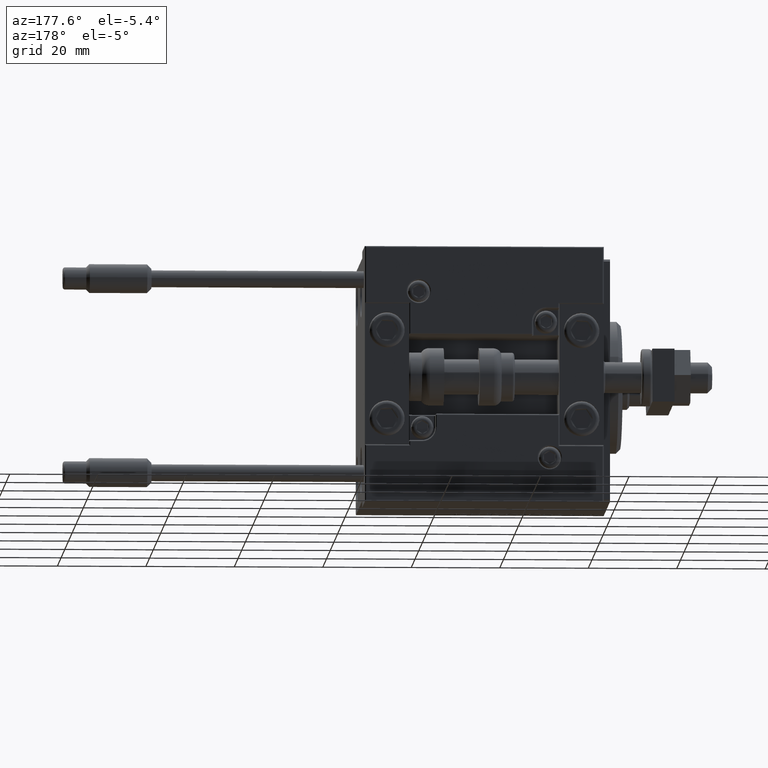
[diagram: clean part render]
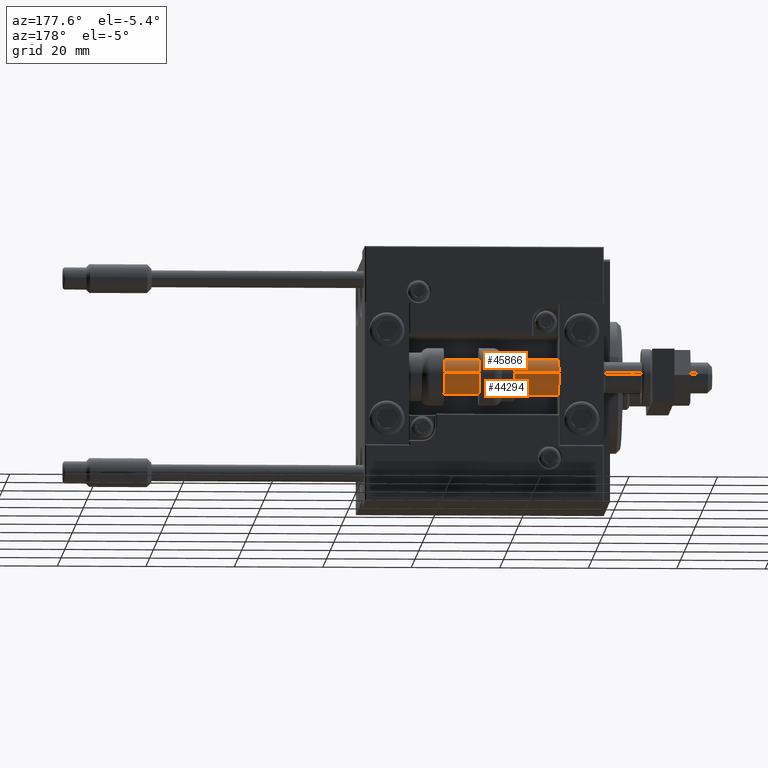
[diagram: same view with one multi-face feature highlighted, each face labeled with its STEP entity id]
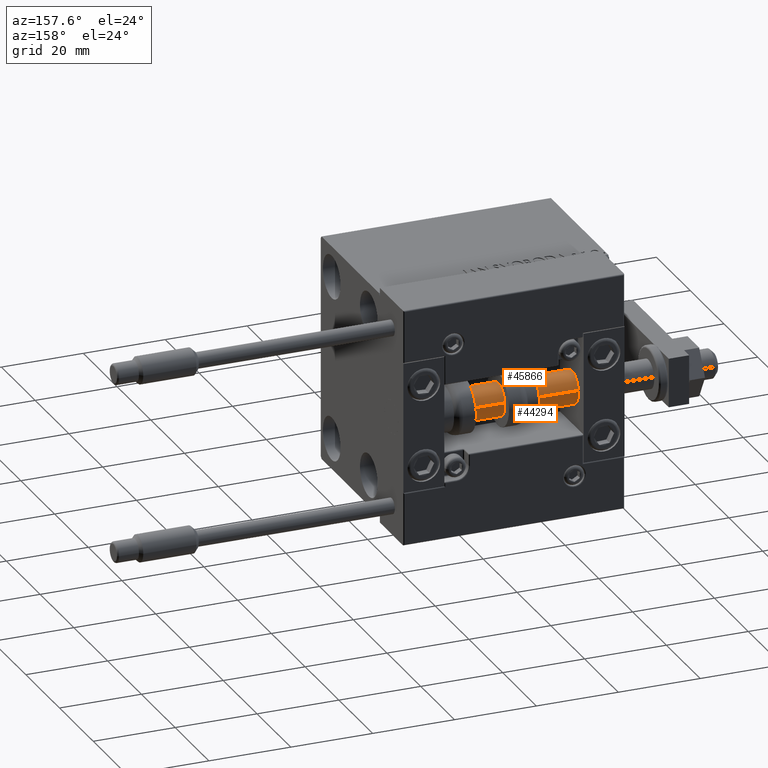
[diagram: same view with one multi-face feature highlighted, each face labeled with its STEP entity id]
A machine part, auxiliary view. The highlighted faces form ONE feature: a constant-radius fillet chain: 2 tangent blend faces with common blend radius 4 mm. The faces share edges in the B-rep.
A second angle (auxiliary view) of the same feature is appended — it is thin or edge-on in the first view.
Their STEP definitions:
[1] entity #45866 (Cylinder):
#2960 = CIRCLE ( 'NONE', #45317, 4.000000000000000000 ) ;
#3096 = EDGE_CURVE ( 'NONE', #43007, #42677, #2960, .T. ) ;
#4232 = LINE ( 'NONE', #11886, #42107 ) ;
#5833 = CARTESIAN_POINT ( 'NONE',  ( 4.000000000000000000, 4.898587196589412829E-16, 56.00000000000000000 ) ) ;
#8337 = CARTESIAN_POINT ( 'NONE',  ( 4.000000000000000000, 4.898587196589412829E-16, 56.00000000000000000 ) ) ;
#8384 = EDGE_LOOP ( 'NONE', ( #49252, #16969, #37998, #40154 ) ) ;
#8577 = CYLINDRICAL_SURFACE ( 'NONE', #50255, 4.000000000000000000 ) ;
#11226 = CARTESIAN_POINT ( 'NONE',  ( -4.000000000000000000, 0.000000000000000000, 56.00000000000000000 ) ) ;
#11886 = CARTESIAN_POINT ( 'NONE',  ( -4.000000000000000000, 0.000000000000000000, 56.00000000000000000 ) ) ;
#16969 = ORIENTED_EDGE ( 'NONE', *, *, #27250, .T. ) ;
#17472 = DIRECTION ( 'NONE',  ( -0.000000000000000000, -0.000000000000000000, -1.000000000000000000 ) ) ;
#18343 = CARTESIAN_POINT ( 'NONE',  ( 0.000000000000000000, 0.000000000000000000, 2.000000000000036415 ) ) ;
#18855 = DIRECTION ( 'NONE',  ( 1.000000000000000000, 0.000000000000000000, 0.000000000000000000 ) ) ;
#22237 = CARTESIAN_POINT ( 'NONE',  ( 4.000000000000000000, 4.898587196589412829E-16, 2.000000000000036415 ) ) ;
#26277 = DIRECTION ( 'NONE',  ( -0.000000000000000000, -0.000000000000000000, 1.000000000000000000 ) ) ;
#26304 = EDGE_CURVE ( 'NONE', #43497, #49662, #36729, .T. ) ;
#26600 = CARTESIAN_POINT ( 'NONE',  ( -4.000000000000000000, 0.000000000000000000, 2.000000000000036415 ) ) ;
#27250 = EDGE_CURVE ( 'NONE', #43007, #43497, #44111, .T. ) ;
#27803 = AXIS2_PLACEMENT_3D ( 'NONE', #18343, #26277, #18855 ) ;
#31773 = FACE_OUTER_BOUND ( 'NONE', #8384, .T. ) ;
#32027 = CARTESIAN_POINT ( 'NONE',  ( 0.000000000000000000, 0.000000000000000000, 56.00000000000000000 ) ) ;
#35934 = DIRECTION ( 'NONE',  ( -0.000000000000000000, -0.000000000000000000, -1.000000000000000000 ) ) ;
#36729 = CIRCLE ( 'NONE', #27803, 4.000000000000000000 ) ;
#37998 = ORIENTED_EDGE ( 'NONE', *, *, #26304, .T. ) ;
#40088 = DIRECTION ( 'NONE',  ( 1.000000000000000000, 0.000000000000000000, 0.000000000000000000 ) ) ;
#40154 = ORIENTED_EDGE ( 'NONE', *, *, #49273, .F. ) ;
#40700 = DIRECTION ( 'NONE',  ( -1.000000000000000000, 0.000000000000000000, 0.000000000000000000 ) ) ;
#42107 = VECTOR ( 'NONE', #47331, 1000.000000000000000 ) ;
#42677 = VERTEX_POINT ( 'NONE', #11226 ) ;
#43007 = VERTEX_POINT ( 'NONE', #8337 ) ;
#43497 = VERTEX_POINT ( 'NONE', #22237 ) ;
#44111 = LINE ( 'NONE', #5833, #48172 ) ;
#45317 = AXIS2_PLACEMENT_3D ( 'NONE', #47735, #47485, #40088 ) ;
#45866 = ADVANCED_FACE ( 'NONE', ( #31773 ), #8577, .T. ) ;
#47331 = DIRECTION ( 'NONE',  ( -0.000000000000000000, -0.000000000000000000, -1.000000000000000000 ) ) ;
#47485 = DIRECTION ( 'NONE',  ( 0.000000000000000000, 0.000000000000000000, 1.000000000000000000 ) ) ;
#47735 = CARTESIAN_POINT ( 'NONE',  ( 0.000000000000000000, 0.000000000000000000, 56.00000000000000000 ) ) ;
#48172 = VECTOR ( 'NONE', #35934, 1000.000000000000000 ) ;
#49252 = ORIENTED_EDGE ( 'NONE', *, *, #3096, .F. ) ;
#49273 = EDGE_CURVE ( 'NONE', #42677, #49662, #4232, .T. ) ;
#49662 = VERTEX_POINT ( 'NONE', #26600 ) ;
#50255 = AXIS2_PLACEMENT_3D ( 'NONE', #32027, #17472, #40700 ) ;
[2] entity #44294 (Cylinder):
#940 = EDGE_LOOP ( 'NONE', ( #40620, #38989, #16755, #49717 ) ) ;
#4232 = LINE ( 'NONE', #11886, #42107 ) ;
#5833 = CARTESIAN_POINT ( 'NONE',  ( 4.000000000000000000, 4.898587196589412829E-16, 56.00000000000000000 ) ) ;
#8337 = CARTESIAN_POINT ( 'NONE',  ( 4.000000000000000000, 4.898587196589412829E-16, 56.00000000000000000 ) ) ;
#10774 = CARTESIAN_POINT ( 'NONE',  ( 0.000000000000000000, 0.000000000000000000, 56.00000000000000000 ) ) ;
#11226 = CARTESIAN_POINT ( 'NONE',  ( -4.000000000000000000, 0.000000000000000000, 56.00000000000000000 ) ) ;
#11886 = CARTESIAN_POINT ( 'NONE',  ( -4.000000000000000000, 0.000000000000000000, 56.00000000000000000 ) ) ;
#12173 = CIRCLE ( 'NONE', #40684, 4.000000000000000000 ) ;
#14340 = DIRECTION ( 'NONE',  ( -1.000000000000000000, 0.000000000000000000, 0.000000000000000000 ) ) ;
#14847 = FACE_OUTER_BOUND ( 'NONE', #940, .T. ) ;
#15032 = DIRECTION ( 'NONE',  ( -0.000000000000000000, -0.000000000000000000, 1.000000000000000000 ) ) ;
#16672 = AXIS2_PLACEMENT_3D ( 'NONE', #49980, #15032, #46418 ) ;
#16755 = ORIENTED_EDGE ( 'NONE', *, *, #49273, .T. ) ;
#19242 = AXIS2_PLACEMENT_3D ( 'NONE', #10774, #21766, #14340 ) ;
#21766 = DIRECTION ( 'NONE',  ( -0.000000000000000000, -0.000000000000000000, -1.000000000000000000 ) ) ;
#22237 = CARTESIAN_POINT ( 'NONE',  ( 4.000000000000000000, 4.898587196589412829E-16, 2.000000000000036415 ) ) ;
#22472 = EDGE_CURVE ( 'NONE', #42677, #43007, #12173, .T. ) ;
#25325 = DIRECTION ( 'NONE',  ( 0.000000000000000000, 0.000000000000000000, 1.000000000000000000 ) ) ;
#26600 = CARTESIAN_POINT ( 'NONE',  ( -4.000000000000000000, 0.000000000000000000, 2.000000000000036415 ) ) ;
#27250 = EDGE_CURVE ( 'NONE', #43007, #43497, #44111, .T. ) ;
#30399 = CYLINDRICAL_SURFACE ( 'NONE', #19242, 4.000000000000000000 ) ;
#35934 = DIRECTION ( 'NONE',  ( -0.000000000000000000, -0.000000000000000000, -1.000000000000000000 ) ) ;
#38989 = ORIENTED_EDGE ( 'NONE', *, *, #22472, .F. ) ;
#39496 = CIRCLE ( 'NONE', #16672, 4.000000000000000000 ) ;
#40620 = ORIENTED_EDGE ( 'NONE', *, *, #27250, .F. ) ;
#40684 = AXIS2_PLACEMENT_3D ( 'NONE', #48502, #25325, #40863 ) ;
#40863 = DIRECTION ( 'NONE',  ( 1.000000000000000000, 0.000000000000000000, 0.000000000000000000 ) ) ;
#41894 = EDGE_CURVE ( 'NONE', #49662, #43497, #39496, .T. ) ;
#42107 = VECTOR ( 'NONE', #47331, 1000.000000000000000 ) ;
#42677 = VERTEX_POINT ( 'NONE', #11226 ) ;
#43007 = VERTEX_POINT ( 'NONE', #8337 ) ;
#43497 = VERTEX_POINT ( 'NONE', #22237 ) ;
#44111 = LINE ( 'NONE', #5833, #48172 ) ;
#44294 = ADVANCED_FACE ( 'NONE', ( #14847 ), #30399, .T. ) ;
#46418 = DIRECTION ( 'NONE',  ( 1.000000000000000000, 0.000000000000000000, 0.000000000000000000 ) ) ;
#47331 = DIRECTION ( 'NONE',  ( -0.000000000000000000, -0.000000000000000000, -1.000000000000000000 ) ) ;
#48172 = VECTOR ( 'NONE', #35934, 1000.000000000000000 ) ;
#48502 = CARTESIAN_POINT ( 'NONE',  ( 0.000000000000000000, 0.000000000000000000, 56.00000000000000000 ) ) ;
#49273 = EDGE_CURVE ( 'NONE', #42677, #49662, #4232, .T. ) ;
#49662 = VERTEX_POINT ( 'NONE', #26600 ) ;
#49717 = ORIENTED_EDGE ( 'NONE', *, *, #41894, .T. ) ;
#49980 = CARTESIAN_POINT ( 'NONE',  ( 0.000000000000000000, 0.000000000000000000, 2.000000000000036415 ) ) ;